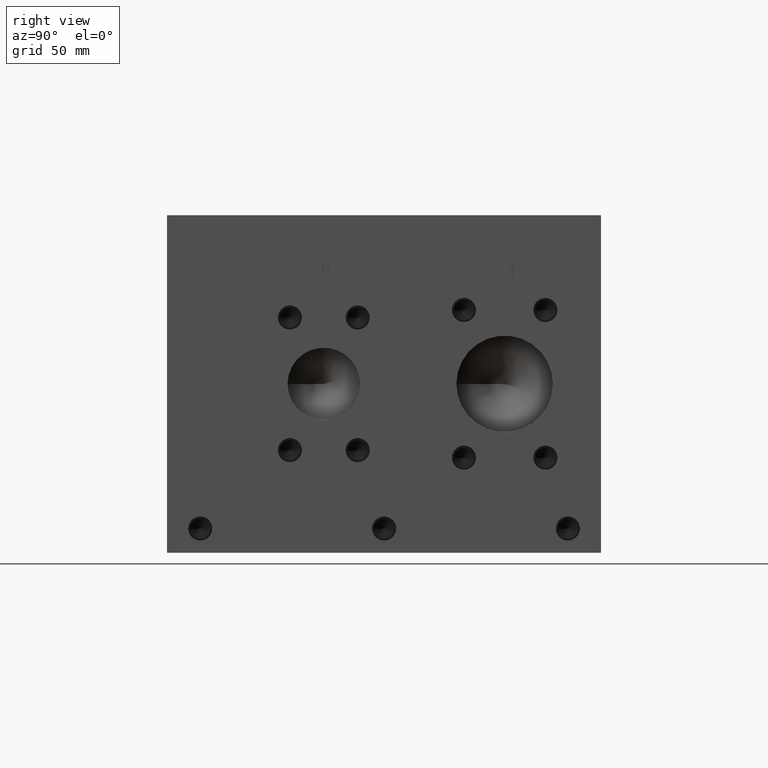
[diagram: clean part render]
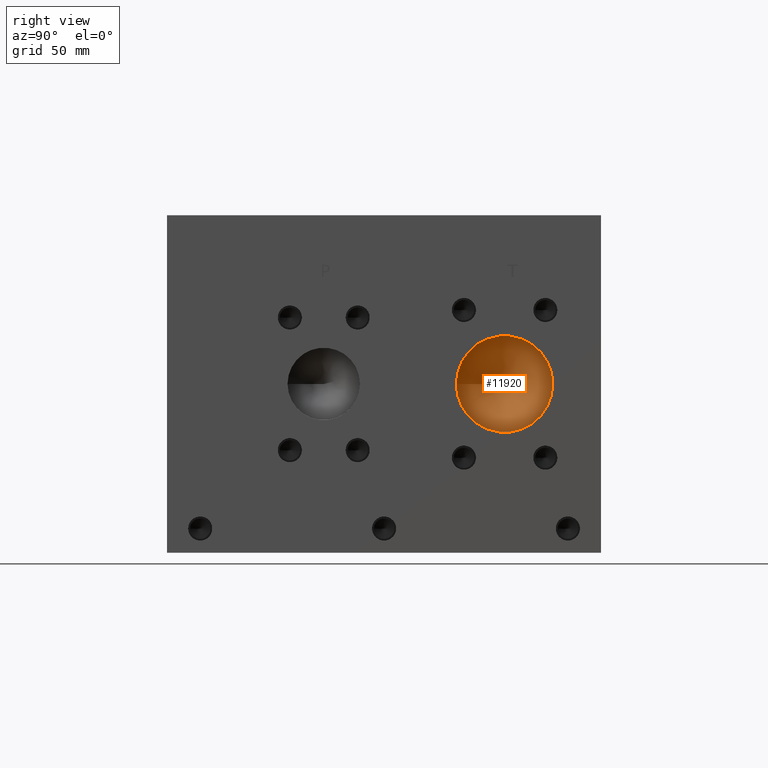
[diagram: same view with one face highlighted and labeled with its STEP entity id]
A machine part, right view. The second image highlights one B-rep face of the part: STEP entity #11920.
In plain terms, the highlighted conical surface has half-angle 60 deg.
Its self-contained STEP definition (entity closure, byte-faithful):
#138=CONICAL_SURFACE('',#12640,12.7,1.0471975511966);
#366=CIRCLE('',#12641,25.4);
#367=CIRCLE('',#12642,25.4);
#1501=FACE_OUTER_BOUND('',#2221,.T.);
#2221=EDGE_LOOP('',(#10122,#10123,#10124,#10125));
#3359=LINE('',#20084,#4439);
#4439=VECTOR('',#15098,12.7);
#5509=VERTEX_POINT('',#20080);
#5510=VERTEX_POINT('',#20081);
#5511=VERTEX_POINT('',#20083);
#7109=EDGE_CURVE('',#5509,#5510,#366,.T.);
#7110=EDGE_CURVE('',#5510,#5511,#3359,.T.);
#7111=EDGE_CURVE('',#5510,#5509,#367,.T.);
#10122=ORIENTED_EDGE('',*,*,#7109,.T.);
#10123=ORIENTED_EDGE('',*,*,#7110,.T.);
#10124=ORIENTED_EDGE('',*,*,#7110,.F.);
#10125=ORIENTED_EDGE('',*,*,#7111,.T.);
#11920=ADVANCED_FACE('',(#1501),#138,.F.);
#12640=AXIS2_PLACEMENT_3D('',#20079,#15094,#15095);
#12641=AXIS2_PLACEMENT_3D('',#20082,#15096,#15097);
#12642=AXIS2_PLACEMENT_3D('',#20085,#15099,#15100);
#15094=DIRECTION('center_axis',(1.,0.,0.));
#15095=DIRECTION('ref_axis',(0.,1.,0.));
#15096=DIRECTION('center_axis',(1.,0.,0.));
#15097=DIRECTION('ref_axis',(0.,1.,0.));
#15098=DIRECTION('',(-0.5,0.866025403784439,1.06057523872491E-16));
#15099=DIRECTION('center_axis',(1.,0.,0.));
#15100=DIRECTION('ref_axis',(0.,1.,0.));
#20079=CARTESIAN_POINT('Origin',(232.002951581292,177.8,88.9));
#20080=CARTESIAN_POINT('',(239.3353,203.2,88.9));
#20081=CARTESIAN_POINT('',(239.3353,152.4,88.9));
#20082=CARTESIAN_POINT('Origin',(239.3353,177.8,88.9));
#20083=CARTESIAN_POINT('',(224.670603162584,177.8,88.9));
#20084=CARTESIAN_POINT('',(232.002951581292,165.1,88.9));
#20085=CARTESIAN_POINT('Origin',(239.3353,177.8,88.9));